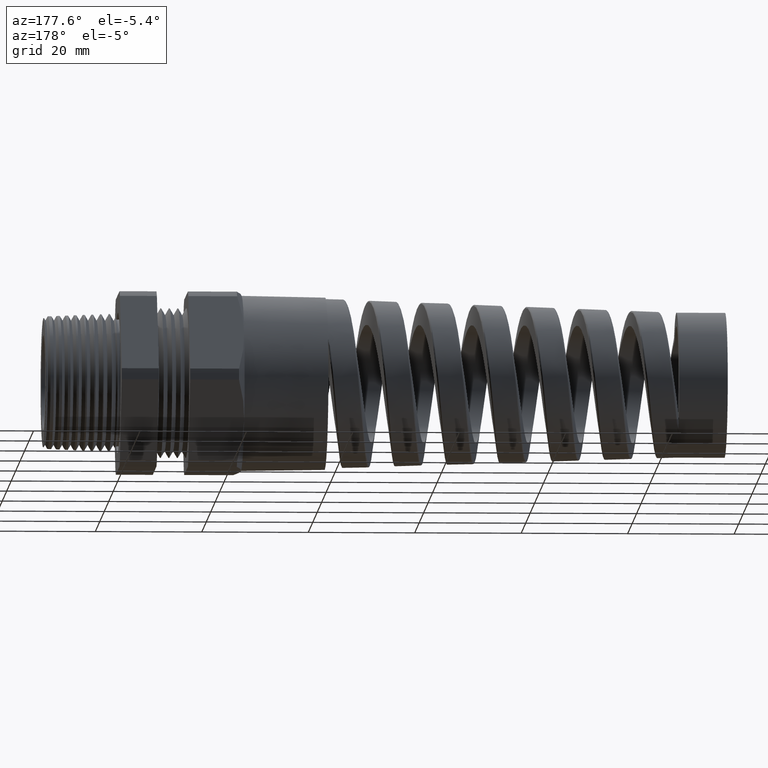
[diagram: clean part render]
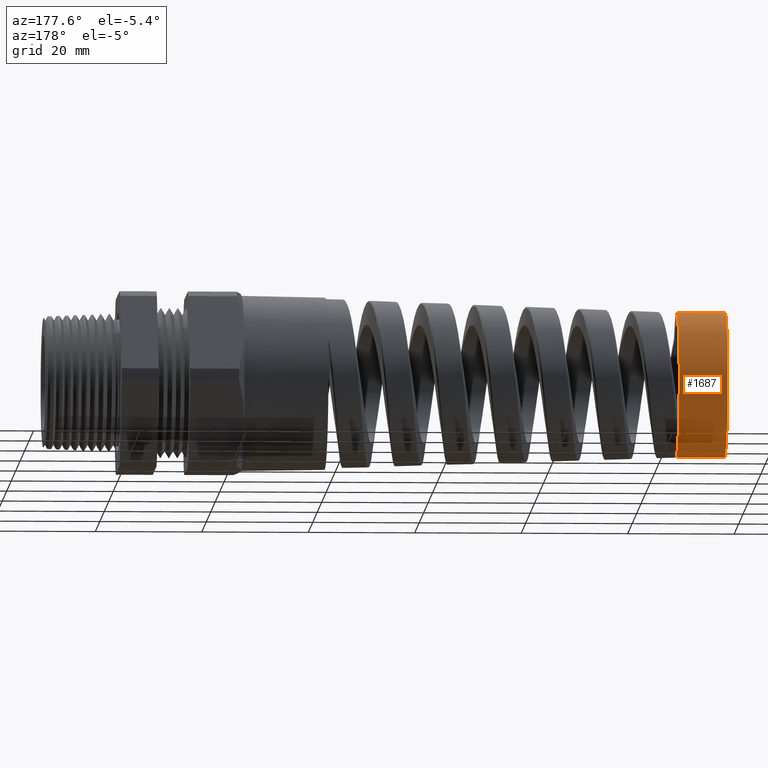
[diagram: same view with one face highlighted and labeled with its STEP entity id]
A machine part, auxiliary view. The second image highlights one B-rep face of the part: STEP entity #1687.
In plain terms, the highlighted cylindrical surface (partial cylindrical patch) has radius 13.6545 mm, axis along (1, 0, 0).
Its self-contained STEP definition (entity closure, byte-faithful):
#1083 = EDGE_CURVE ( 'NONE', #1099, #1098, #3842, .T. ) ;
#1084 = ORIENTED_EDGE ( 'NONE', *, *, #1083, .F. ) ;
#1085 = VERTEX_POINT ( 'NONE', #3837 ) ;
#1086 = EDGE_CURVE ( 'NONE', #1099, #1085, #3907, .T. ) ;
#1087 = VERTEX_POINT ( 'NONE', #3903 ) ;
#1088 = EDGE_CURVE ( 'NONE', #1085, #1087, #3901, .T. ) ;
#1089 = EDGE_CURVE ( 'NONE', #1091, #1087, #3896, .T. ) ;
#1090 = ORIENTED_EDGE ( 'NONE', *, *, #1095, .F. ) ;
#1091 = VERTEX_POINT ( 'NONE', #3892 ) ;
#1093 = ORIENTED_EDGE ( 'NONE', *, *, #1086, .T. ) ;
#1095 = EDGE_CURVE ( 'NONE', #1098, #1091, #3885, .T. ) ;
#1098 = VERTEX_POINT ( 'NONE', #3938 ) ;
#1099 = VERTEX_POINT ( 'NONE', #3937 ) ;
#1100 = ORIENTED_EDGE ( 'NONE', *, *, #1089, .F. ) ;
#1101 = ORIENTED_EDGE ( 'NONE', *, *, #1088, .T. ) ;
#1687 = ADVANCED_FACE ( 'NONE', ( #4829 ), #4828, .T. ) ;
#3837 = CARTESIAN_POINT ( 'NONE',  ( -4.130799999999999800, 6.583458507736260500E-017, 0.5375801833083564400 ) ) ;
#3838 = DIRECTION ( 'NONE',  ( 0.0000000000000000000, 0.0000000000000000000, 1.000000000000000000 ) ) ;
#3839 = DIRECTION ( 'NONE',  ( -1.000000000000000000, 0.0000000000000000000, 0.0000000000000000000 ) ) ;
#3840 = CARTESIAN_POINT ( 'NONE',  ( -4.489999999999999300, 0.0000000000000000000, 0.0000000000000000000 ) ) ;
#3841 = AXIS2_PLACEMENT_3D ( 'NONE', #3840, #3839, #3838 ) ;
#3842 = CIRCLE ( 'NONE', #3841, 0.5375801833083564400 ) ;
#3882 = DIRECTION ( 'NONE',  ( 1.000000000000000000, 0.0000000000000000000, 0.0000000000000000000 ) ) ;
#3883 = VECTOR ( 'NONE', #3882, 39.37007874015748100 ) ;
#3884 = CARTESIAN_POINT ( 'NONE',  ( -4.489999999999999300, 0.0000000000000000000, -0.5375801833083564400 ) ) ;
#3885 = LINE ( 'NONE', #3884, #3883 ) ;
#3892 = CARTESIAN_POINT ( 'NONE',  ( -4.130799999999999800, 0.0000000000000000000, -0.5375801833083612100 ) ) ;
#3893 = DIRECTION ( 'NONE',  ( 0.0000000000000000000, 0.0000000000000000000, -1.000000000000000000 ) ) ;
#3894 = DIRECTION ( 'NONE',  ( 1.000000000000000000, 0.0000000000000000000, 0.0000000000000000000 ) ) ;
#3895 = AXIS2_PLACEMENT_3D ( 'NONE', #3902, #3894, #3893 ) ;
#3896 = CIRCLE ( 'NONE', #3895, 0.5375801833083612100 ) ;
#3897 = DIRECTION ( 'NONE',  ( 0.0000000000000000000, 0.0000000000000000000, 1.000000000000000000 ) ) ;
#3898 = DIRECTION ( 'NONE',  ( -1.000000000000000000, 0.0000000000000000000, 0.0000000000000000000 ) ) ;
#3899 = CARTESIAN_POINT ( 'NONE',  ( -4.130799999999999800, 0.0000000000000000000, 0.0000000000000000000 ) ) ;
#3900 = AXIS2_PLACEMENT_3D ( 'NONE', #3899, #3898, #3897 ) ;
#3901 = CIRCLE ( 'NONE', #3900, 0.5375801833083564400 ) ;
#3902 = CARTESIAN_POINT ( 'NONE',  ( -4.130799999999999800, 0.0000000000000000000, 0.0000000000000000000 ) ) ;
#3903 = CARTESIAN_POINT ( 'NONE',  ( -4.130799999999999800, 0.3509568706405288800, -0.4072121418082451100 ) ) ;
#3904 = DIRECTION ( 'NONE',  ( 1.000000000000000000, 0.0000000000000000000, 0.0000000000000000000 ) ) ;
#3905 = VECTOR ( 'NONE', #3904, 39.37007874015748100 ) ;
#3906 = CARTESIAN_POINT ( 'NONE',  ( -4.489999999999999300, 6.583458507736260500E-017, 0.5375801833083564400 ) ) ;
#3907 = LINE ( 'NONE', #3906, #3905 ) ;
#3937 = CARTESIAN_POINT ( 'NONE',  ( -4.489999999999999300, 6.583458507736260500E-017, 0.5375801833083564400 ) ) ;
#3938 = CARTESIAN_POINT ( 'NONE',  ( -4.489999999999999300, 0.0000000000000000000, -0.5375801833083564400 ) ) ;
#4823 = DIRECTION ( 'NONE',  ( 0.0000000000000000000, 0.0000000000000000000, -1.000000000000000000 ) ) ;
#4824 = DIRECTION ( 'NONE',  ( 1.000000000000000000, 0.0000000000000000000, 0.0000000000000000000 ) ) ;
#4825 = CARTESIAN_POINT ( 'NONE',  ( -4.489999999999999300, 0.0000000000000000000, 0.0000000000000000000 ) ) ;
#4826 = AXIS2_PLACEMENT_3D ( 'NONE', #4825, #4824, #4823 ) ;
#4828 = CYLINDRICAL_SURFACE ( 'NONE', #4826, 0.5375801833083564400 ) ;
#4829 = FACE_OUTER_BOUND ( 'NONE', #8008, .T. ) ;
#8008 = EDGE_LOOP ( 'NONE', ( #1084, #1093, #1101, #1100, #1090 ) ) ;